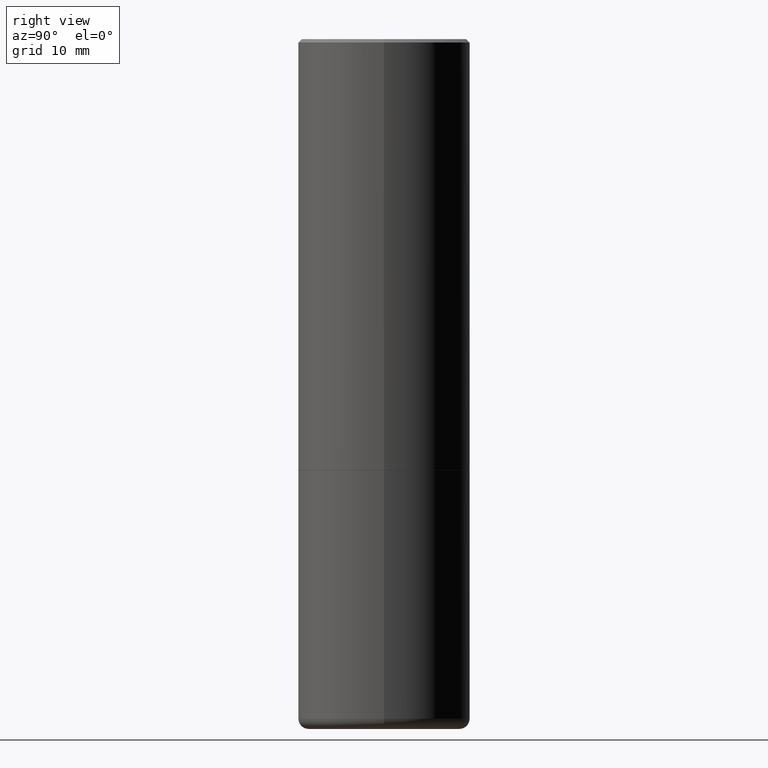
[diagram: clean part render]
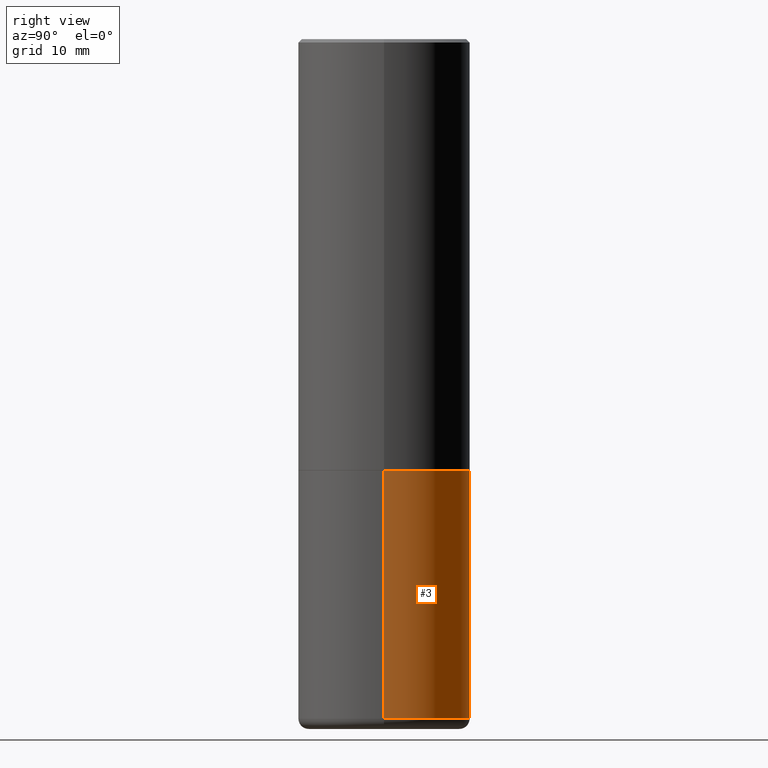
[diagram: same view with one face highlighted and labeled with its STEP entity id]
A machine part, right view. The second image highlights one B-rep face of the part: STEP entity #3.
In plain terms, the highlighted cylindrical surface (partial cylindrical patch) has radius 12.7 mm, axis along (-0, 0, 1).
Its self-contained STEP definition (entity closure, byte-faithful):
#3 = ADVANCED_FACE ( 'NONE', ( #367 ), #380, .T. ) ;
#6 = ORIENTED_EDGE ( 'NONE', *, *, #374, .F. ) ;
#21 = DIRECTION ( 'NONE',  ( -2.445468806185136597E-29, 3.491481338843145583E-15, 1.000000000000000000 ) ) ;
#29 = EDGE_CURVE ( 'NONE', #184, #224, #90, .T. ) ;
#82 = DIRECTION ( 'NONE',  ( -2.445468806185136877E-29, 3.491481338843145188E-15, 1.000000000000000000 ) ) ;
#90 = CIRCLE ( 'NONE', #332, 0.5000000000000000000 ) ;
#91 = CARTESIAN_POINT ( 'NONE',  ( -0.5000000000000000000, -7.689856232274430126E-15, -2.500000000000000000 ) ) ;
#107 = LINE ( 'NONE', #116, #213 ) ;
#108 = DIRECTION ( 'NONE',  ( 1.000000000000000000, -6.982962677686269077E-15, 0.000000000000000000 ) ) ;
#109 = ORIENTED_EDGE ( 'NONE', *, *, #315, .T. ) ;
#116 = CARTESIAN_POINT ( 'NONE',  ( 0.4999999999999998335, -3.491481338843132566E-15, 2.438088387897967336E-29 ) ) ;
#128 = EDGE_CURVE ( 'NONE', #340, #224, #148, .T. ) ;
#132 = CARTESIAN_POINT ( 'NONE',  ( 0.5000000000000000000, -1.222018468595099830E-14, -2.500000000000000000 ) ) ;
#140 = DIRECTION ( 'NONE',  ( -2.445468806185136877E-29, 3.491481338843145188E-15, 1.000000000000000000 ) ) ;
#148 = LINE ( 'NONE', #386, #292 ) ;
#157 = DIRECTION ( 'NONE',  ( 1.000000000000000000, -6.982962677686265922E-15, 0.000000000000000000 ) ) ;
#163 = AXIS2_PLACEMENT_3D ( 'NONE', #440, #21, #157 ) ;
#184 = VERTEX_POINT ( 'NONE', #132 ) ;
#194 = EDGE_LOOP ( 'NONE', ( #109, #205, #228, #6 ) ) ;
#200 = CIRCLE ( 'NONE', #163, 0.4999999999999997780 ) ;
#205 = ORIENTED_EDGE ( 'NONE', *, *, #128, .T. ) ;
#213 = VECTOR ( 'NONE', #140, 39.37007874015748143 ) ;
#224 = VERTEX_POINT ( 'NONE', #91 ) ;
#228 = ORIENTED_EDGE ( 'NONE', *, *, #29, .F. ) ;
#240 = VERTEX_POINT ( 'NONE', #324 ) ;
#242 = DIRECTION ( 'NONE',  ( -2.445468806185136597E-29, 3.491481338843145583E-15, 1.000000000000000000 ) ) ;
#279 = AXIS2_PLACEMENT_3D ( 'NONE', #302, #305, #311 ) ;
#292 = VECTOR ( 'NONE', #82, 39.37007874015748143 ) ;
#302 = CARTESIAN_POINT ( 'NONE',  ( 0.000000000000000000, 0.000000000000000000, 0.000000000000000000 ) ) ;
#305 = DIRECTION ( 'NONE',  ( -2.445468806185136597E-29, 3.491481338843145583E-15, 1.000000000000000000 ) ) ;
#311 = DIRECTION ( 'NONE',  ( 1.000000000000000000, -6.982962677686267499E-15, 4.876176775795936353E-29 ) ) ;
#315 = EDGE_CURVE ( 'NONE', #240, #340, #200, .T. ) ;
#324 = CARTESIAN_POINT ( 'NONE',  ( 0.4999999999999997780, -1.724791781388512421E-14, -3.939999999999999947 ) ) ;
#332 = AXIS2_PLACEMENT_3D ( 'NONE', #408, #242, #108 ) ;
#340 = VERTEX_POINT ( 'NONE', #381 ) ;
#367 = FACE_OUTER_BOUND ( 'NONE', #194, .T. ) ;
#374 = EDGE_CURVE ( 'NONE', #240, #184, #107, .T. ) ;
#380 = CYLINDRICAL_SURFACE ( 'NONE', #279, 0.4999999999999998335 ) ;
#381 = CARTESIAN_POINT ( 'NONE',  ( -0.4999999999999997780, -1.020372279624149466E-14, -3.939999999999999947 ) ) ;
#386 = CARTESIAN_POINT ( 'NONE',  ( -0.4999999999999998335, 3.552713678800499746E-15, -2.459467545127452330E-29 ) ) ;
#408 = CARTESIAN_POINT ( 'NONE',  ( 6.113672015462842613E-29, -8.728703347107864943E-15, -2.500000000000000000 ) ) ;
#440 = CARTESIAN_POINT ( 'NONE',  ( 9.635147096369438236E-29, -1.375643647504199401E-14, -3.939999999999999947 ) ) ;